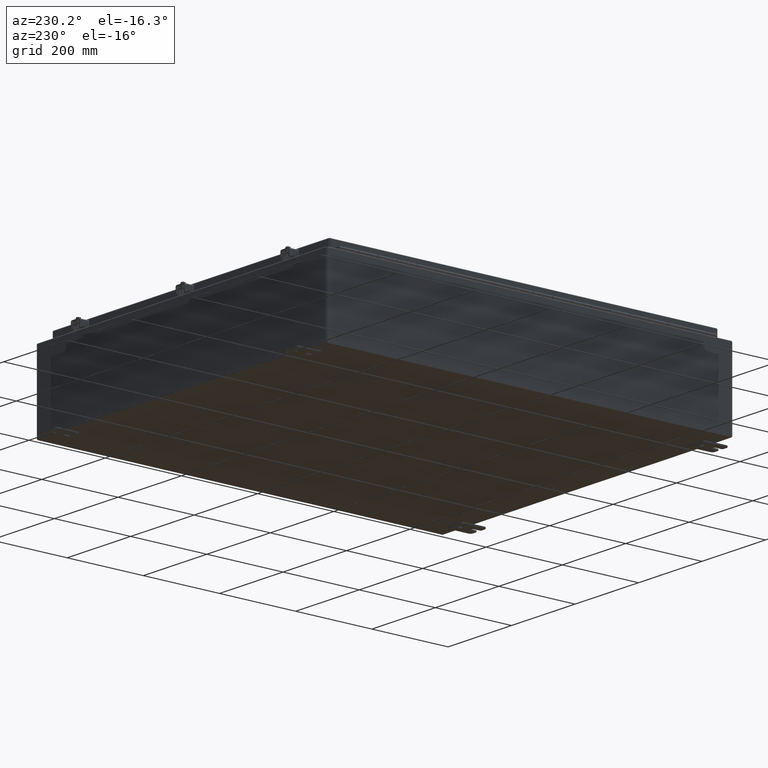
[diagram: clean part render]
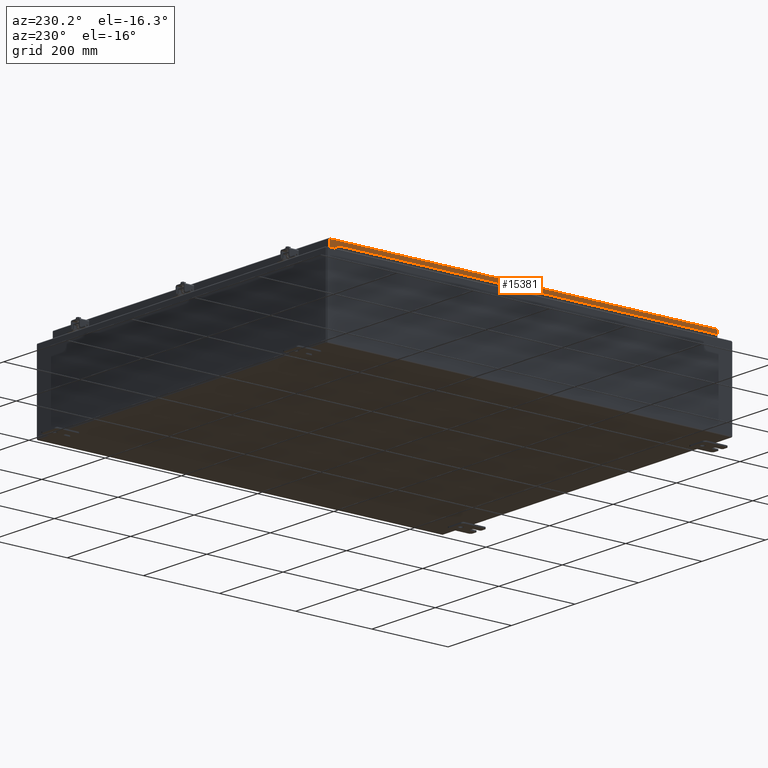
[diagram: same view with one face highlighted and labeled with its STEP entity id]
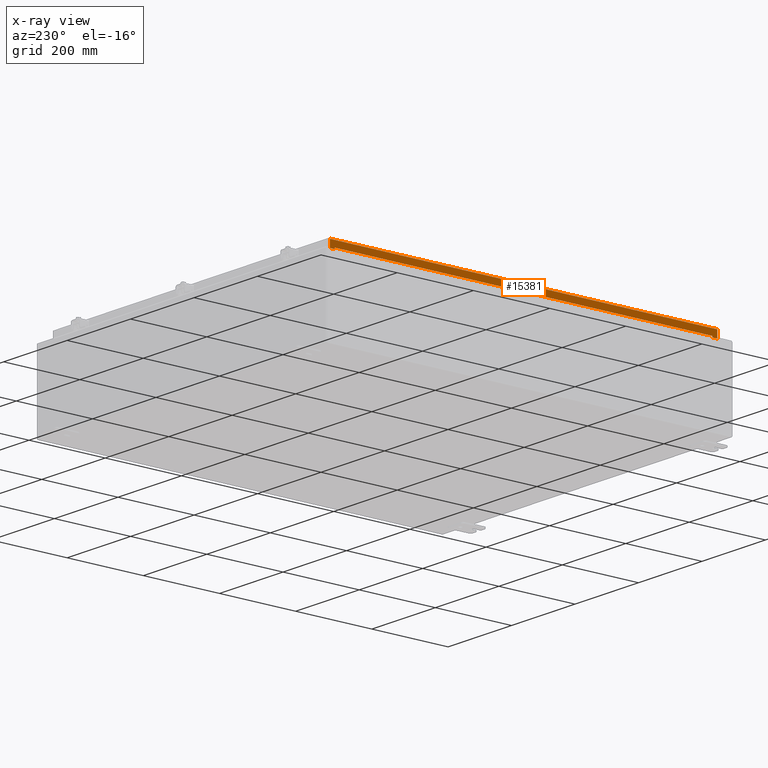
[diagram: x-ray of the same camera — body ghosted, the highlighted face saturated]
A machine part, auxiliary view. The second image highlights one B-rep face of the part: STEP entity #15381.
The next image is the same camera in x-ray: the body ghosted, the highlighted face saturated — about 0% of this face is hidden behind the body in this view.
In plain terms, the highlighted planar face has unit normal (1, -0, -0).
Its self-contained STEP definition (entity closure, byte-faithful):
#1528=PLANE('',#16293);
#2164=FACE_OUTER_BOUND('',#3025,.T.);
#3025=EDGE_LOOP('',(#12051,#12052,#12053,#12054,#12055,#12056,#12057,#12058));
#3933=LINE('',#24707,#5353);
#3936=LINE('',#24713,#5356);
#3940=LINE('',#24720,#5360);
#3946=LINE('',#24733,#5366);
#4064=LINE('',#25167,#5484);
#4070=LINE('',#25328,#5490);
#4073=LINE('',#25334,#5493);
#4074=LINE('',#25361,#5494);
#5353=VECTOR('',#18246,39.03125);
#5356=VECTOR('',#18251,0.124999999999999);
#5360=VECTOR('',#18257,0.124999999999999);
#5366=VECTOR('',#18267,0.503417893218813);
#5484=VECTOR('',#18511,0.76975000000001);
#5490=VECTOR('',#18525,0.503417893218813);
#5493=VECTOR('',#18532,0.76975);
#5494=VECTOR('',#18537,40.0380857864376);
#7291=VERTEX_POINT('',#24704);
#7292=VERTEX_POINT('',#24706);
#7294=VERTEX_POINT('',#24712);
#7296=VERTEX_POINT('',#24718);
#7301=VERTEX_POINT('',#24732);
#7378=VERTEX_POINT('',#25027);
#7389=VERTEX_POINT('',#25326);
#7390=VERTEX_POINT('',#25332);
#8949=EDGE_CURVE('',#7292,#7291,#3933,.T.);
#8952=EDGE_CURVE('',#7294,#7292,#3936,.T.);
#8956=EDGE_CURVE('',#7291,#7296,#3940,.T.);
#8962=EDGE_CURVE('',#7301,#7294,#3946,.T.);
#9105=EDGE_CURVE('',#7378,#7301,#4064,.T.);
#9120=EDGE_CURVE('',#7296,#7389,#4070,.T.);
#9123=EDGE_CURVE('',#7389,#7390,#4073,.T.);
#9125=EDGE_CURVE('',#7390,#7378,#4074,.T.);
#12051=ORIENTED_EDGE('',*,*,#8956,.T.);
#12052=ORIENTED_EDGE('',*,*,#9120,.T.);
#12053=ORIENTED_EDGE('',*,*,#9123,.T.);
#12054=ORIENTED_EDGE('',*,*,#9125,.T.);
#12055=ORIENTED_EDGE('',*,*,#9105,.T.);
#12056=ORIENTED_EDGE('',*,*,#8962,.T.);
#12057=ORIENTED_EDGE('',*,*,#8952,.T.);
#12058=ORIENTED_EDGE('',*,*,#8949,.T.);
#15381=ADVANCED_FACE('',(#2164),#1528,.F.);
#16293=AXIS2_PLACEMENT_3D('',#25363,#18539,#18540);
#18246=DIRECTION('',(-3.61106562041476E-16,1.,5.78029227916362E-16));
#18251=DIRECTION('',(5.77666791858085E-15,4.70522588537192E-16,-1.));
#18257=DIRECTION('',(-5.77666791858085E-15,-4.70522588537192E-16,1.));
#18267=DIRECTION('',(0.,1.,0.));
#18511=DIRECTION('',(0.,-3.63418297565725E-15,1.));
#18525=DIRECTION('',(0.,1.,0.));
#18532=DIRECTION('',(7.26836595131459E-15,-3.6341829756573E-15,-1.));
#18537=DIRECTION('',(3.61106562041472E-16,-1.,8.20832693735969E-31));
#18539=DIRECTION('center_axis',(1.,3.61106562041472E-16,5.77666791858085E-15));
#18540=DIRECTION('ref_axis',(9.02389274415327E-15,-2.08827049120661E-16,
-1.));
#24704=CARTESIAN_POINT('',(-17.1875,19.515625,0.750000000000023));
#24706=CARTESIAN_POINT('',(-17.1875,-19.515625,0.75));
#24707=CARTESIAN_POINT('',(-17.1875,9.7578125,0.750000000000017));
#24712=CARTESIAN_POINT('',(-17.1875,-19.515625,0.874999999999999));
#24713=CARTESIAN_POINT('',(-17.1875,-19.515625,0.603431693890055));
#24718=CARTESIAN_POINT('',(-17.1875,19.515625,0.875000000000022));
#24720=CARTESIAN_POINT('',(-17.1875,19.515625,0.665931693890075));
#24732=CARTESIAN_POINT('',(-17.1875,-20.0190428932188,0.874999999999999));
#24733=CARTESIAN_POINT('',(-17.1875,-125.578211071266,0.874999999999999));
#25027=CARTESIAN_POINT('',(-17.1875,-20.0190428932188,0.105249999999994));
#25167=CARTESIAN_POINT('',(-17.1875,-20.0190428932188,0.105249999999989));
#25326=CARTESIAN_POINT('',(-17.1875,20.0190428932188,0.875000000000005));
#25328=CARTESIAN_POINT('',(-17.1875,-125.578211071266,0.874999999999999));
#25332=CARTESIAN_POINT('',(-17.1875,20.0190428932188,0.105250000000013));
#25334=CARTESIAN_POINT('',(-17.1875,20.0190428932188,0.105250000000005));
#25361=CARTESIAN_POINT('',(-17.1875,5.96042654485109E-16,0.105250000000001));
#25363=CARTESIAN_POINT('Origin',(-17.1875,1.22364273725289E-15,0.45686338778012));